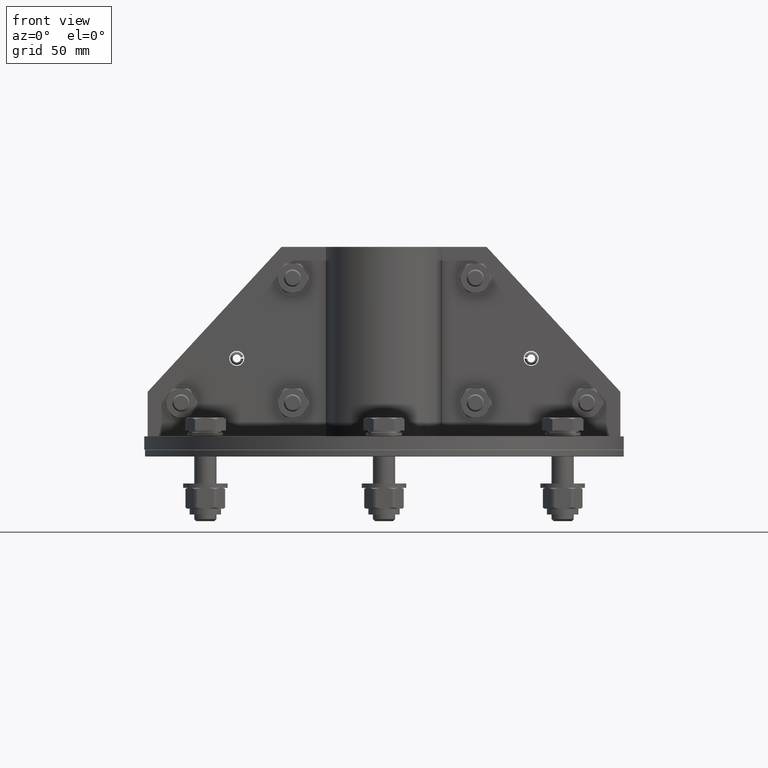
[diagram: clean part render]
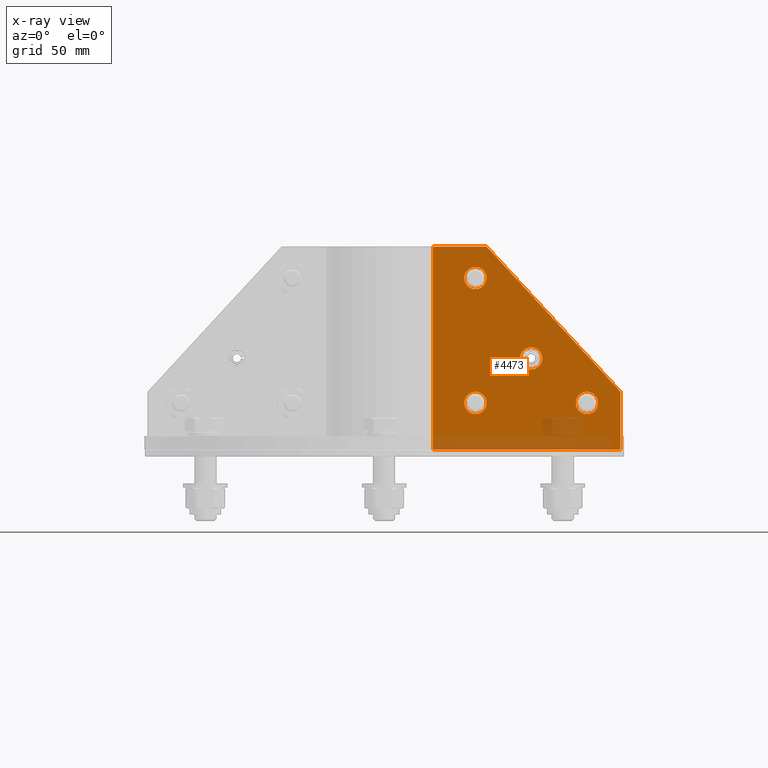
[diagram: x-ray — body ghosted, one internal face saturated and labeled with its STEP entity id]
A machine part, front view, then the same camera in x-ray: the body is ghosted and one INTERNAL B-rep face — a face not visible from any outside direction — is saturated and labeled: STEP entity #4473.
In plain terms, the highlighted planar face has unit normal (-0, 1, 0).
Its self-contained STEP definition (entity closure, byte-faithful):
#4187=CARTESIAN_POINT('',(-14.000000000000002,77.0,0.4));
#4188=VERTEX_POINT('',#4187);
#4189=CARTESIAN_POINT('',(-19.0,77.0,0.4));
#4190=DIRECTION('',(0.0,0.0,-1.0));
#4191=DIRECTION('',(-1.0,0.0,0.0));
#4192=AXIS2_PLACEMENT_3D('',#4189,#4190,#4191);
#4193=CIRCLE('',#4192,5.0);
#4194=EDGE_CURVE('',#4188,#4188,#4193,.T.);
#4215=CARTESIAN_POINT('',(-14.000000000000002,21.0,0.4));
#4216=VERTEX_POINT('',#4215);
#4217=CARTESIAN_POINT('',(-19.0,21.0,0.4));
#4218=DIRECTION('',(0.0,0.0,-1.0));
#4219=DIRECTION('',(-1.0,0.0,0.0));
#4220=AXIS2_PLACEMENT_3D('',#4217,#4218,#4219);
#4221=CIRCLE('',#4220,5.0);
#4222=EDGE_CURVE('',#4216,#4216,#4221,.T.);
#4243=CARTESIAN_POINT('',(-64.0,21.0,0.4));
#4244=VERTEX_POINT('',#4243);
#4245=CARTESIAN_POINT('',(-69.0,21.0,0.4));
#4246=DIRECTION('',(0.0,0.0,-1.0));
#4247=DIRECTION('',(-1.0,0.0,0.0));
#4248=AXIS2_PLACEMENT_3D('',#4245,#4246,#4247);
#4249=CIRCLE('',#4248,5.0);
#4250=EDGE_CURVE('',#4244,#4244,#4249,.T.);
#4271=CARTESIAN_POINT('',(-39.0,41.0,0.4));
#4272=VERTEX_POINT('',#4271);
#4273=CARTESIAN_POINT('',(-44.0,41.0,0.4));
#4274=DIRECTION('',(0.0,0.0,-1.0));
#4275=DIRECTION('',(-1.0,0.0,0.0));
#4276=AXIS2_PLACEMENT_3D('',#4273,#4274,#4275);
#4277=CIRCLE('',#4276,5.0);
#4278=EDGE_CURVE('',#4272,#4272,#4277,.T.);
#4299=CARTESIAN_POINT('',(-84.0,-1.028703E-014,0.4));
#4300=VERTEX_POINT('',#4299);
#4301=CARTESIAN_POINT('',(-84.000000000000028,25.999999999999993,0.4));
#4302=VERTEX_POINT('',#4301);
#4303=CARTESIAN_POINT('',(-84.0,-1.028703E-014,0.4));
#4304=DIRECTION('',(0.0,1.0,0.0));
#4305=VECTOR('',#4304,26.0);
#4306=LINE('',#4303,#4305);
#4307=EDGE_CURVE('',#4300,#4302,#4306,.T.);
#4339=CARTESIAN_POINT('',(-24.000000000000028,90.999999999999972,0.4));
#4340=VERTEX_POINT('',#4339);
#4341=CARTESIAN_POINT('',(-84.000000000000028,25.999999999999993,0.4));
#4342=DIRECTION('',(0.678280102733066,0.734803444627488,0.0));
#4343=VECTOR('',#4342,88.459030064770673);
#4344=LINE('',#4341,#4343);
#4345=EDGE_CURVE('',#4302,#4340,#4344,.T.);
#4370=CARTESIAN_POINT('',(-2.786071E-014,91.0,0.4));
#4371=VERTEX_POINT('',#4370);
#4372=CARTESIAN_POINT('',(-24.000000000000028,90.999999999999972,0.4));
#4373=DIRECTION('',(1.0,0.0,0.0));
#4374=VECTOR('',#4373,24.000000000000004);
#4375=LINE('',#4372,#4374);
#4376=EDGE_CURVE('',#4340,#4371,#4375,.T.);
#4401=CARTESIAN_POINT('',(0.0,0.0,0.4));
#4402=VERTEX_POINT('',#4401);
#4403=CARTESIAN_POINT('',(-2.786071E-014,91.0,0.4));
#4404=DIRECTION('',(0.0,-1.0,0.0));
#4405=VECTOR('',#4404,91.0);
#4406=LINE('',#4403,#4405);
#4407=EDGE_CURVE('',#4371,#4402,#4406,.T.);
#4432=CARTESIAN_POINT('',(0.0,0.0,0.4));
#4433=DIRECTION('',(-1.0,0.0,0.0));
#4434=VECTOR('',#4433,84.0);
#4435=LINE('',#4432,#4434);
#4436=EDGE_CURVE('',#4402,#4300,#4435,.T.);
#4449=CARTESIAN_POINT('',(-34.380211095755612,37.763637743481517,0.4));
#4450=DIRECTION('',(0.0,0.0,1.0));
#4451=DIRECTION('',(1.0,0.0,0.0));
#4452=AXIS2_PLACEMENT_3D('',#4449,#4450,#4451);
#4453=PLANE('',#4452);
#4454=ORIENTED_EDGE('',*,*,#4307,.F.);
#4455=ORIENTED_EDGE('',*,*,#4436,.F.);
#4456=ORIENTED_EDGE('',*,*,#4407,.F.);
#4457=ORIENTED_EDGE('',*,*,#4376,.F.);
#4458=ORIENTED_EDGE('',*,*,#4345,.F.);
#4459=EDGE_LOOP('',(#4454,#4455,#4456,#4457,#4458));
#4460=FACE_OUTER_BOUND('',#4459,.T.);
#4461=ORIENTED_EDGE('',*,*,#4194,.T.);
#4462=EDGE_LOOP('',(#4461));
#4463=FACE_BOUND('',#4462,.T.);
#4464=ORIENTED_EDGE('',*,*,#4222,.T.);
#4465=EDGE_LOOP('',(#4464));
#4466=FACE_BOUND('',#4465,.T.);
#4467=ORIENTED_EDGE('',*,*,#4250,.T.);
#4468=EDGE_LOOP('',(#4467));
#4469=FACE_BOUND('',#4468,.T.);
#4470=ORIENTED_EDGE('',*,*,#4278,.T.);
#4471=EDGE_LOOP('',(#4470));
#4472=FACE_BOUND('',#4471,.T.);
#4473=ADVANCED_FACE('',(#4460,#4463,#4466,#4469,#4472),#4453,.T.);